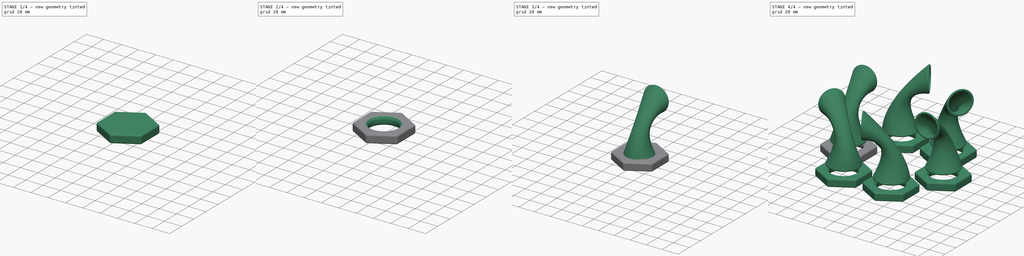
[diagram: build sequence overview — one tinted view per stage of 4, left to right]
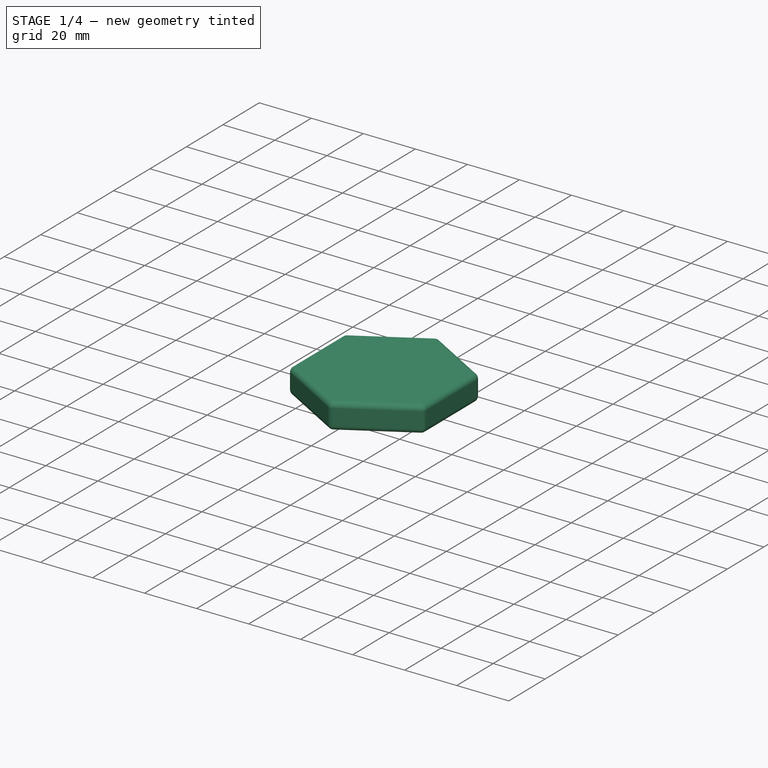
[diagram: stage 1 of 4 — iso view after this stage's code; geometry added in this stage tinted green]
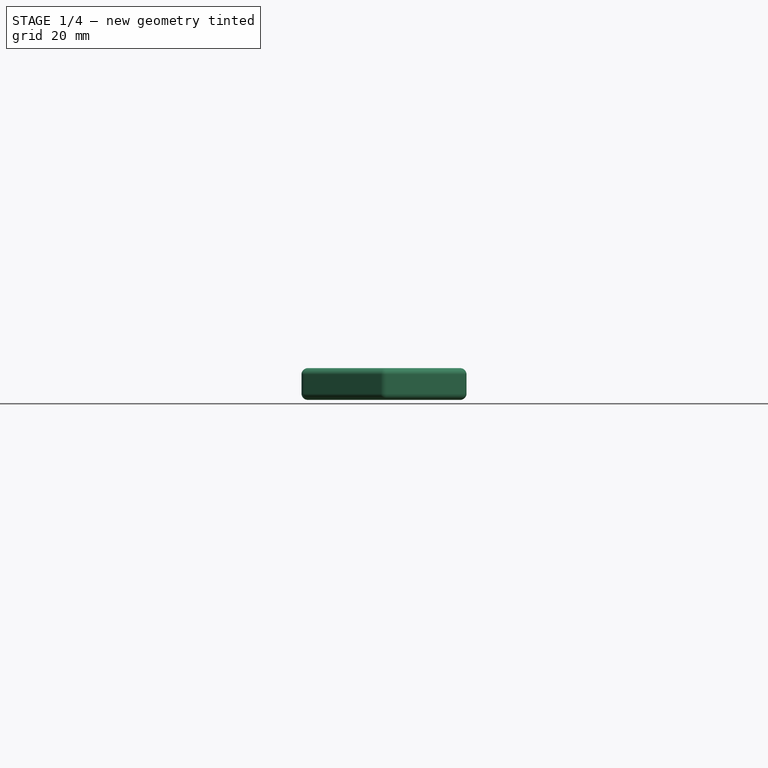
[diagram: stage 1 of 4 — front view after this stage's code; geometry added in this stage tinted green]
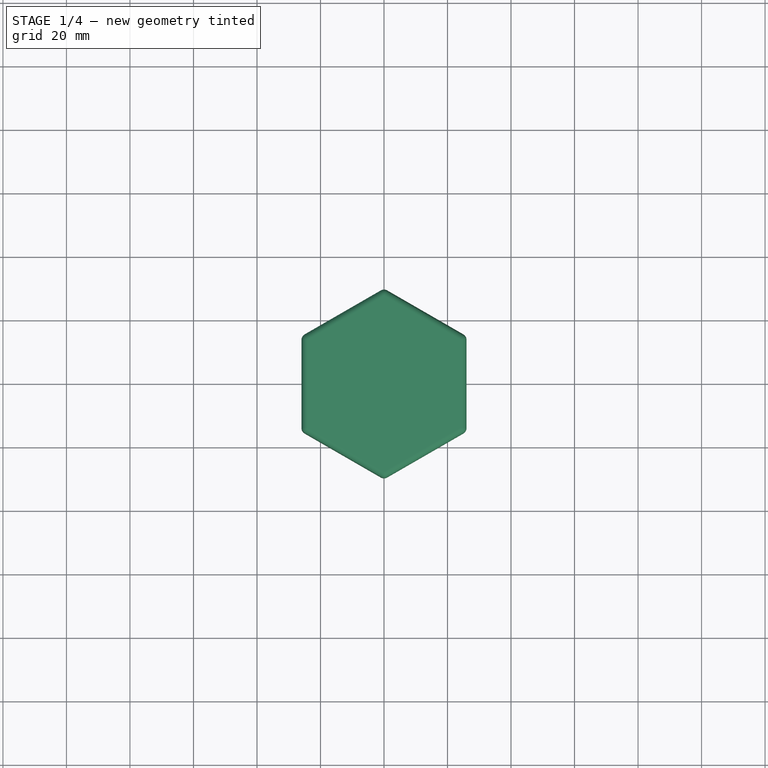
[diagram: stage 1 of 4 — top view after this stage's code; geometry added in this stage tinted green]
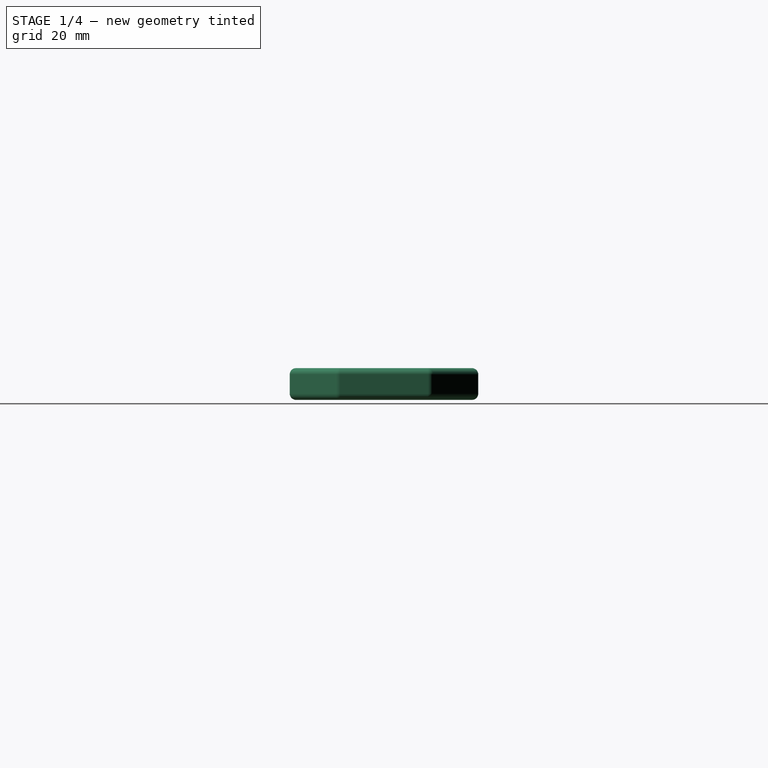
[diagram: stage 1 of 4 — right view after this stage's code; geometry added in this stage tinted green]
FCSTD DOCUMENT  (FreeCAD 0.19R)
Label: freecad_test_DraftLinkedArray_Visibility2
License: Creative Commons Attribution-ShareAlike
LicenseURL: http://creativecommons.org/licenses/by-sa/4.0/
objects: Sketcher::SketchObject×5, PartDesign::Fillet×4, App::Part×4, PartDesign::Body×2, App::Link×2, Part::FeaturePython×2, PartDesign::Pad×1, PartDesign::AdditiveLoft×1, PartDesign::Pocket×1
note: 17 computed .brp shape members not serialized (recipe doc carries the construction recipe); baked Part::Feature solids carry a one-line shape summary decoded from their .brp

FEATURE [Sketcher::SketchObject] Sketch
  MapMode = 5
  Support = -> [XY_Plane003]
  sketch-geometry (7):
    g0: LineSegment StartX=25.9808 StartY=15 StartZ=0 EndX=2.913e-13 EndY=30 EndZ=0
    g1: LineSegment StartX=2.911e-13 StartY=30 StartZ=0 EndX=-25.9808 EndY=15 EndZ=0
    g2: LineSegment StartX=-25.9808 StartY=15 StartZ=0 EndX=-25.9808 EndY=-15 EndZ=0
    g3: LineSegment StartX=-25.9808 StartY=-15 StartZ=0 EndX=3.446e-13 EndY=-30 EndZ=0
    g4: LineSegment StartX=3.446e-13 StartY=-30 StartZ=0 EndX=25.9808 EndY=-15 EndZ=0
    g5: LineSegment StartX=25.9808 StartY=-15 StartZ=0 EndX=25.9808 EndY=15 EndZ=0
    g6: Circle [constr] CenterX=0 CenterY=0 CenterZ=0 NormalX=0 NormalY=0 NormalZ=1 AngleXU=0 Radius=30
  constraints (16):
    c: Coincident(g0,g1)
    c: Coincident(g1,g2)
    c: Coincident(g2,g3)
    c: Coincident(g3,g4)
    c: Coincident(g4,g5)
    c: Coincident(g5,g0)
    c: Equal(g0, g1-g5) x5
    c: PointOnObject(g0,g6)
    c: PointOnObject(g1,g6)
    c: PointOnObject(g2,g6)
    c: PointOnObject(g3,g6)
    c: PointOnObject(g4,g6)
    c: PointOnObject(g5,g6)
    c: Coincident(g6,g-1)
    c: Vertical(g5)
    c: Radius(g6) = 30
FEATURE [PartDesign::Pad] Pad
  Length = 10
  Length2 = 100
  Profile = -> Sketch
  Type = 0
FEATURE [PartDesign::Body] Body001  label="pipe_body"
  Group = -> [Sketch001,Sketch002,Sketch003,AdditiveLoft,Fillet,Fillet001]
  Origin = -> Origin005
  Tip = -> Fillet001
FEATURE [App::Part] Part003  label="pipe_part"
  Group = -> [Body001]
  Origin = -> Origin004
  Placement = pos=(0,0,15) rot=(0,0,1;0rad)
FEATURE [PartDesign::Fillet] Fillet002
  Base = -> Pad [Face8,Face7,Edge14,Edge1,Edge2,Edge5,Edge8,Edge11]
  BaseFeature = -> Pad
  Radius = 2
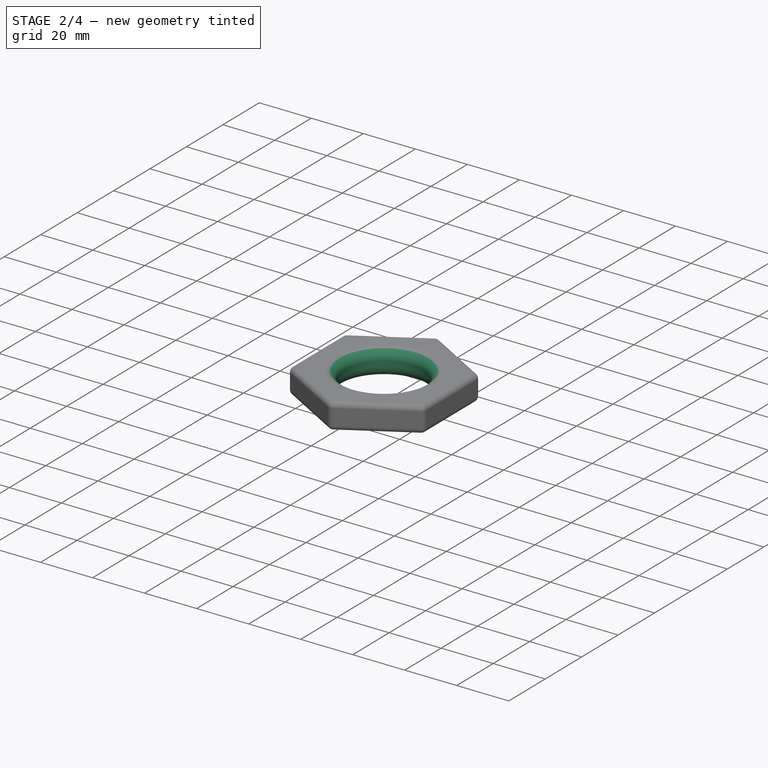
[diagram: stage 2 of 4 — iso view after this stage's code; geometry added in this stage tinted green]
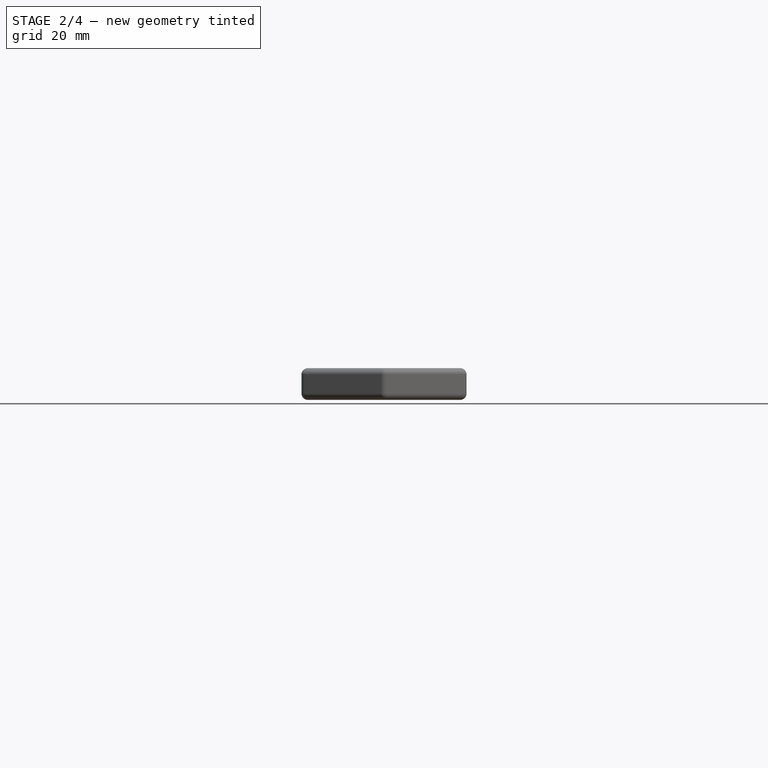
[diagram: stage 2 of 4 — front view after this stage's code; geometry added in this stage tinted green]
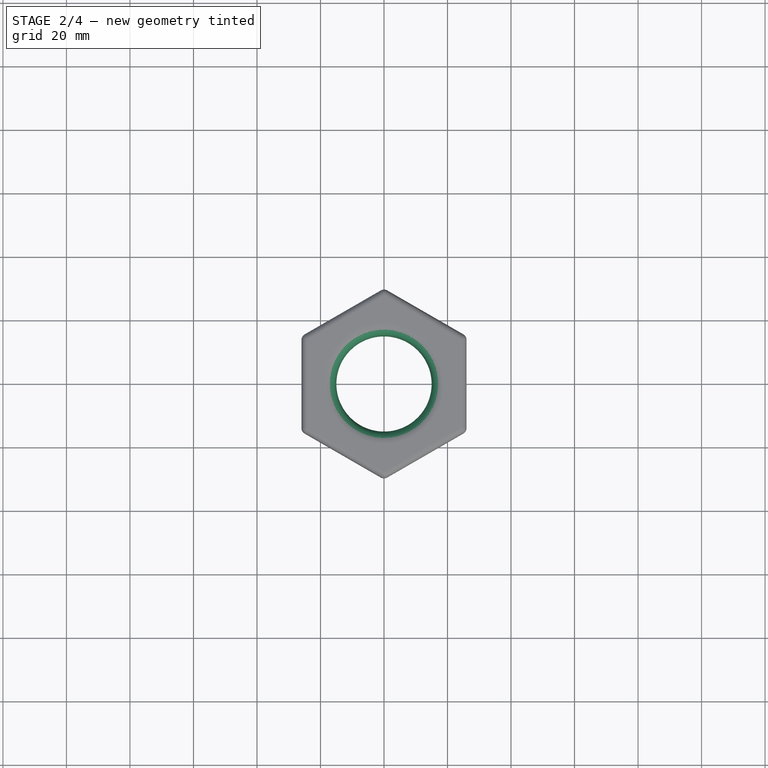
[diagram: stage 2 of 4 — top view after this stage's code; geometry added in this stage tinted green]
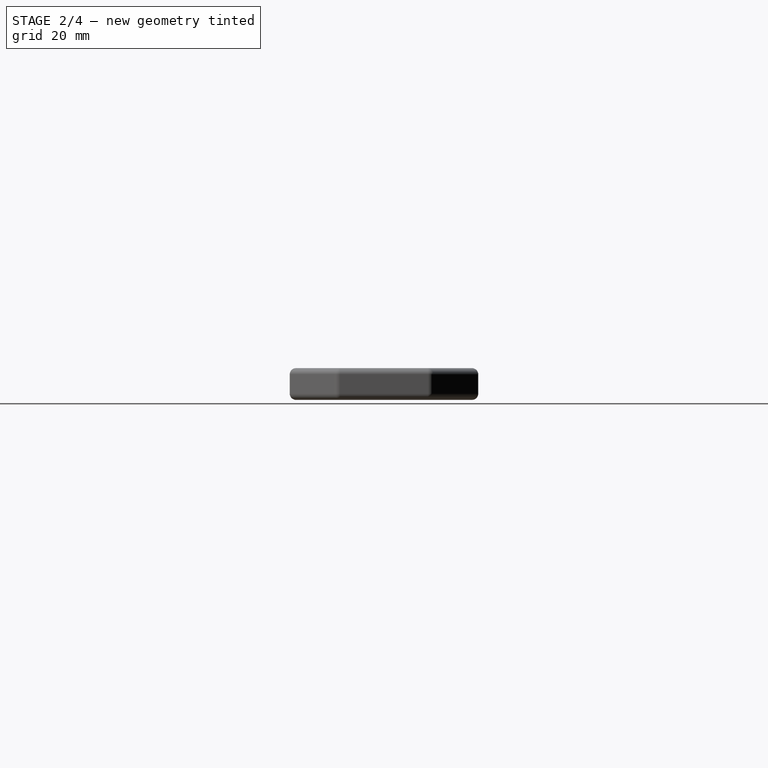
[diagram: stage 2 of 4 — right view after this stage's code; geometry added in this stage tinted green]
FEATURE [Sketcher::SketchObject] Sketch004
  MapMode = 5
  Placement = pos=(0,0,10) rot=(0,0,1;0rad)
  Support = -> [Fillet002]
  sketch-geometry (1):
    g0: Circle CenterX=0 CenterY=0 CenterZ=0 NormalX=0 NormalY=0 NormalZ=1 AngleXU=0 Radius=15
  constraints (2):
    c: Coincident(g0,g-1)
    c: Radius(g0) = 15
FEATURE [PartDesign::Pocket] Pocket
  BaseFeature = -> Fillet002
  Length = 5
  Length2 = 100
  Profile = -> Sketch004
  Type = 1
FEATURE [PartDesign::Fillet] Fillet003
  Base = -> Pocket [Face21]
  BaseFeature = -> Pocket
  Radius = 4
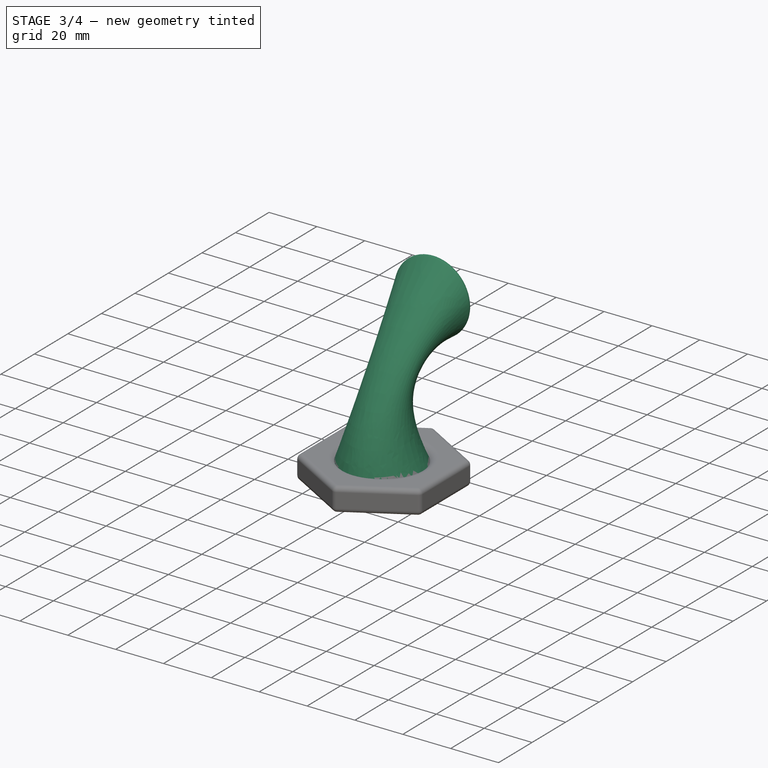
[diagram: stage 3 of 4 — iso view after this stage's code; geometry added in this stage tinted green]
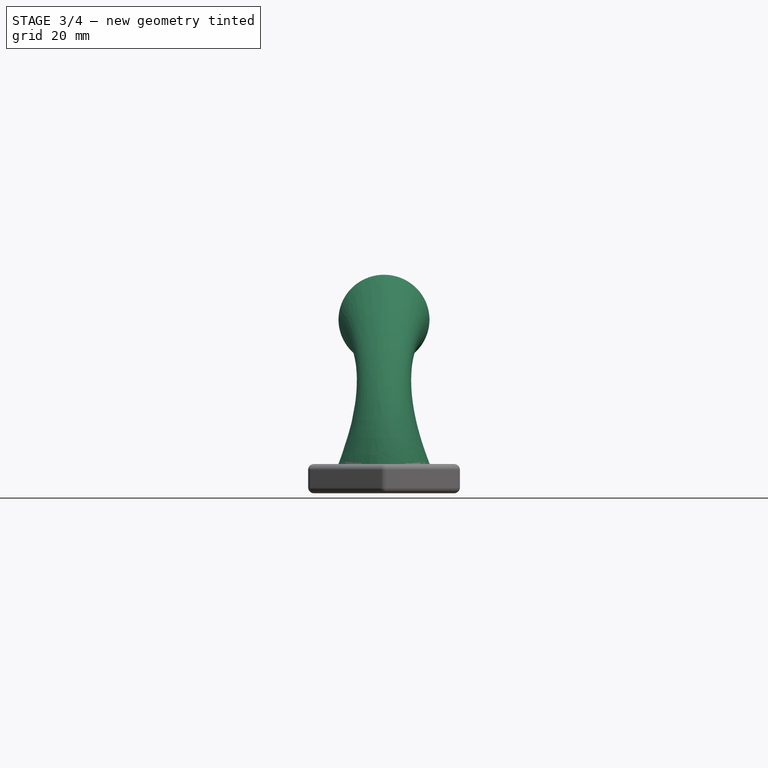
[diagram: stage 3 of 4 — front view after this stage's code; geometry added in this stage tinted green]
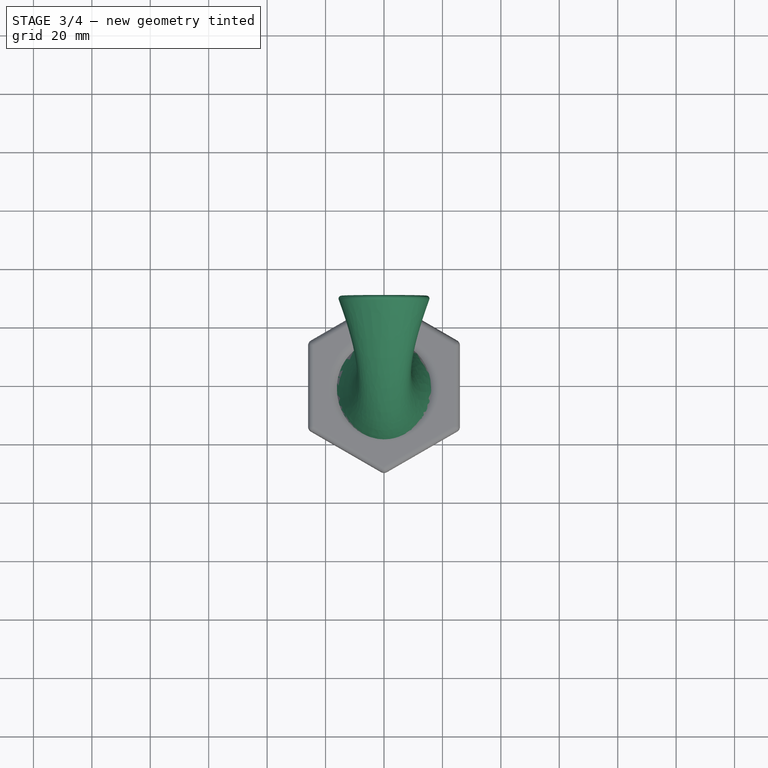
[diagram: stage 3 of 4 — top view after this stage's code; geometry added in this stage tinted green]
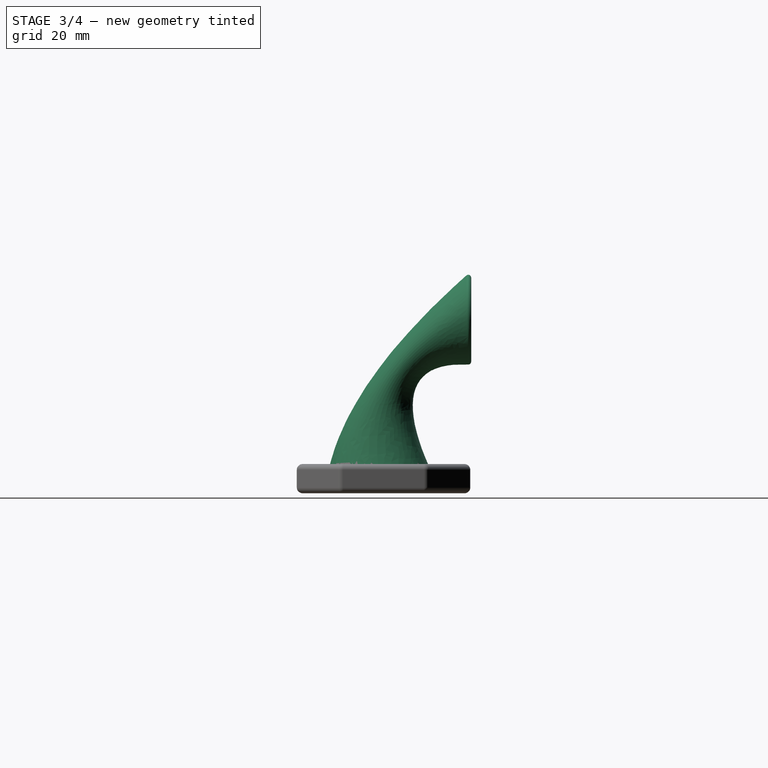
[diagram: stage 3 of 4 — right view after this stage's code; geometry added in this stage tinted green]
FEATURE [Sketcher::SketchObject] Sketch001
  MapMode = 5
  Support = -> [XY_Plane005]
  sketch-geometry (2):
    g0: Circle CenterX=0 CenterY=0 CenterZ=0 NormalX=0 NormalY=0 NormalZ=1 AngleXU=0 Radius=20
    g1: Circle CenterX=0 CenterY=0 CenterZ=0 NormalX=0 NormalY=0 NormalZ=1 AngleXU=0 Radius=15
  constraints (4):
    c: Coincident(g0,g-1)
    c: Radius(g0) = 20
    c: Coincident(g1,g0)
    c: Radius(g1) = 15
FEATURE [Sketcher::SketchObject] Sketch002
  AttachmentOffset = pos=(0,0,30) rot=(0,0,1;0rad)
  MapMode = 5
  Placement = pos=(0,0,30) rot=(0,0,1;0rad)
  Support = -> [XY_Plane005]
  sketch-geometry (2):
    g0: Circle CenterX=0 CenterY=0 CenterZ=0 NormalX=0 NormalY=0 NormalZ=1 AngleXU=0 Radius=10
    g1: Circle CenterX=0 CenterY=0 CenterZ=0 NormalX=0 NormalY=0 NormalZ=1 AngleXU=0 Radius=8
  constraints (4):
    c: Coincident(g0,g-1)
    c: Radius(g0) = 10
    c: Coincident(g1,g0)
    c: Radius(g1) = 8
FEATURE [Sketcher::SketchObject] Sketch003
  AttachmentOffset = pos=(0,30,60) rot=(1,0,0;1.5708rad)
  MapMode = 5
  Placement = pos=(0,30,60) rot=(1,0,0;1.5708rad)
  Support = -> [XY_Plane005]
  sketch-geometry (2):
    g0: Circle CenterX=0 CenterY=0 CenterZ=0 NormalX=0 NormalY=0 NormalZ=1 AngleXU=0 Radius=16
    g1: Circle CenterX=0 CenterY=0 CenterZ=0 NormalX=0 NormalY=0 NormalZ=1 AngleXU=0 Radius=13
  constraints (4):
    c: Coincident(g0,g-1)
    c: Radius(g0) = 16
    c: Coincident(g1,g0)
    c: Radius(g1) = 13
FEATURE [PartDesign::AdditiveLoft] AdditiveLoft
  Closed = false
  Profile = -> Sketch001
  Ruled = false
  Sections = -> [Sketch002,Sketch003]
FEATURE [PartDesign::Fillet] Fillet
  Base = -> AdditiveLoft [Face3]
  BaseFeature = -> AdditiveLoft
  Radius = 1
FEATURE [PartDesign::Fillet] Fillet001
  Base = -> Fillet [Face3]
  BaseFeature = -> Fillet
  Radius = 1.5
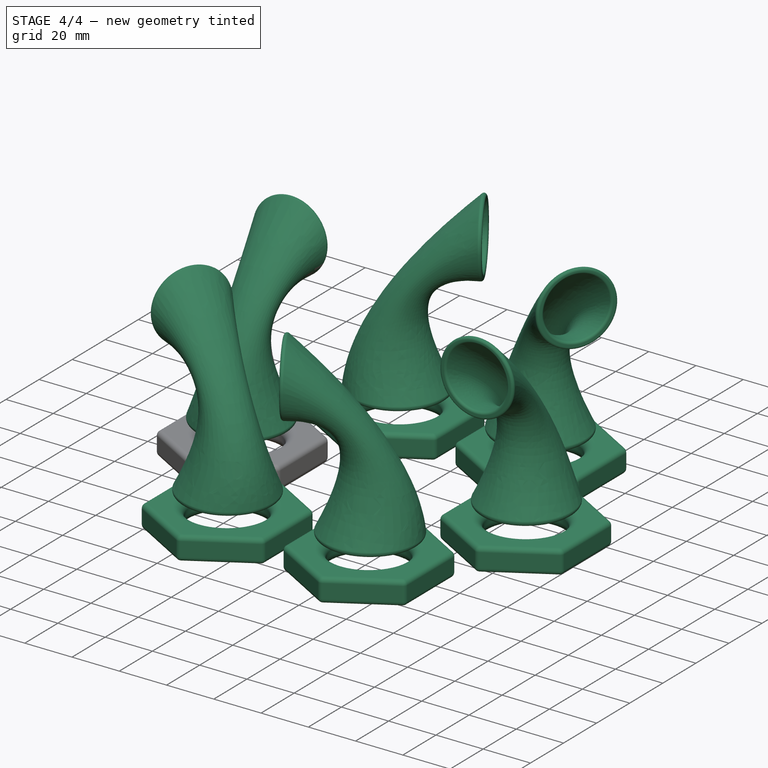
[diagram: stage 4 of 4 — iso view after this stage's code; geometry added in this stage tinted green]
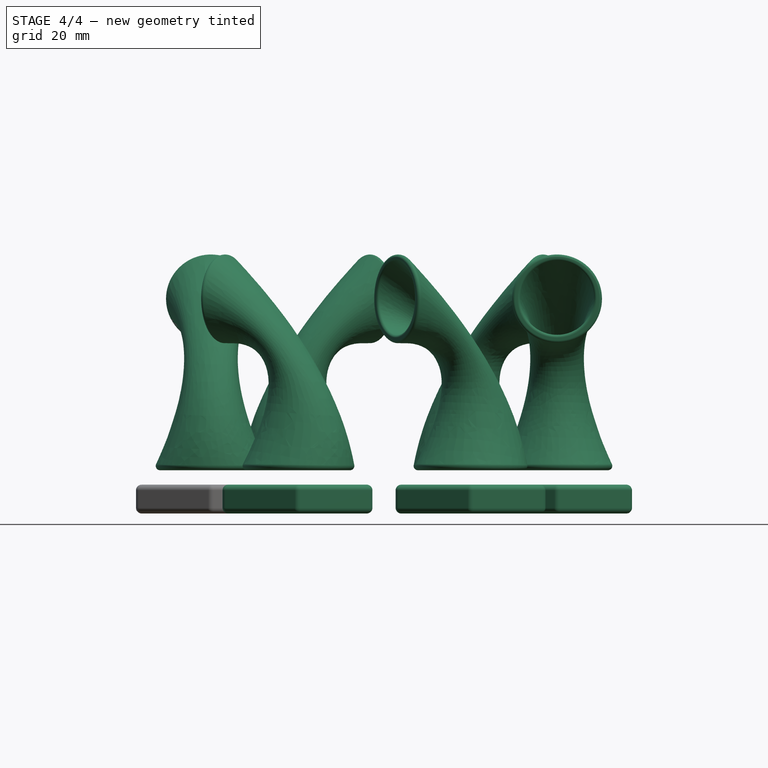
[diagram: stage 4 of 4 — front view after this stage's code; geometry added in this stage tinted green]
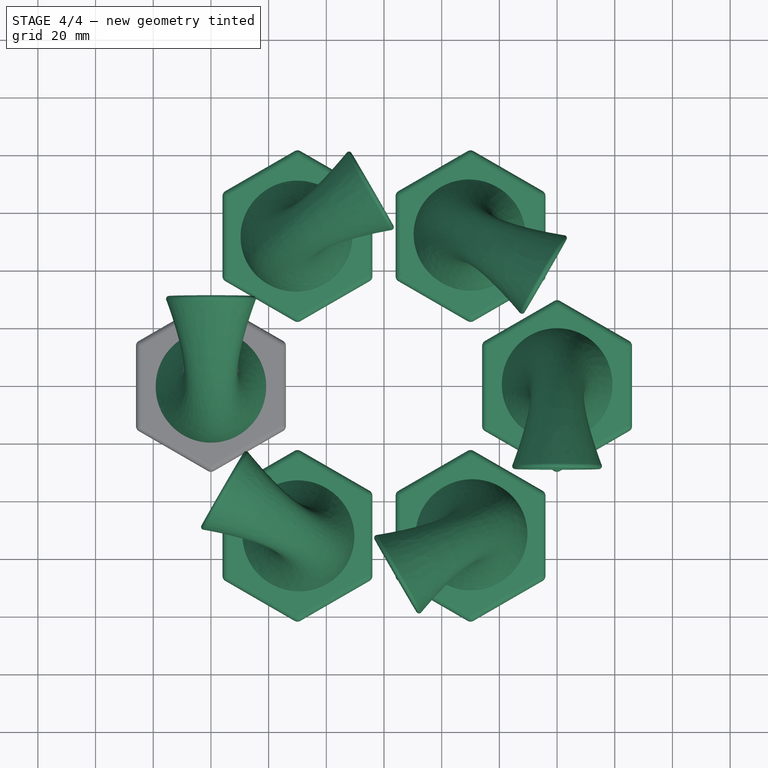
[diagram: stage 4 of 4 — top view after this stage's code; geometry added in this stage tinted green]
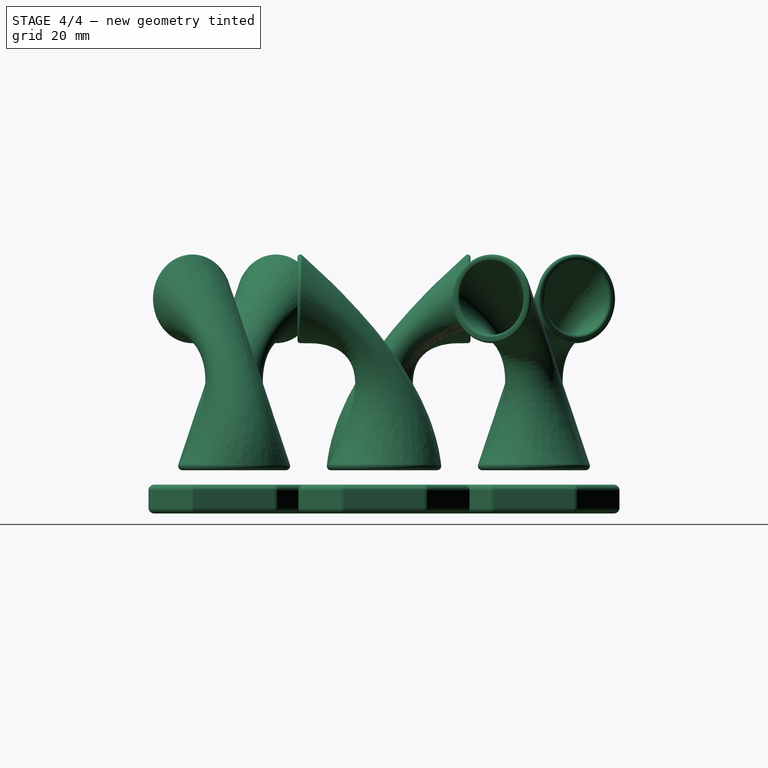
[diagram: stage 4 of 4 — right view after this stage's code; geometry added in this stage tinted green]
FEATURE [PartDesign::Body] Body  label="HexBody"
  Group = -> [Sketch,Pad,Fillet002,Sketch004,Pocket,Fillet003]
  Origin = -> Origin003
  Tip = -> Fillet003
FEATURE [App::Part] Part002  label="hex_part"
  Group = -> [Body]
  Origin = -> Origin002
FEATURE [App::Part] Part001  label="parts"
  Group = -> [Part002,Part003]
  Origin = -> Origin001
FEATURE [App::Link] Link  label="pipe_part003"
  LinkPlacement = pos=(0,0,15) rot=(0,0,1;0rad)
  LinkedObject = -> Part003
  Placement = pos=(0,0,15) rot=(0,0,1;0rad)
FEATURE [Part::FeaturePython] Array001  label="tube_Array"  # Draft array (typed FeaturePython)
  Angle = 360
  ArrayType = 1
  Axis = (0,0,1)
  Base = -> Link
  Center = (60,0,0)
  Count = 6
  ExpandArray = false
  Fuse = false
  IntervalAxis = (0,0,0)
  IntervalX = (1,0,0)
  IntervalY = (0,1,0)
  IntervalZ = (0,0,1)
  NumberCircles = 2
  NumberPolar = 6
  NumberX = 2
  NumberY = 2
  NumberZ = 1
  PlacementList = 6 placements: [(0,0,15),(30,-51.9615,15),(90,-51.9615,15),(120,-7.34788e-15,15),(90,51.9615,15),(30,51.9615,15)]
  RadialDistance = 1
  ScaleList = (6) [(1,1,1),(1,1,1),(1,1,1),(1,1,1),(1,1,1),(1,1,1)]
  Symmetry = 1
  TangentialDistance = 1
FEATURE [App::Link] Link002  label="hex_part001"
  LinkedObject = -> Part002
FEATURE [Part::FeaturePython] Array  label="hex_Array"  # Draft array (typed FeaturePython)
  Angle = 360
  ArrayType = 1
  Axis = (0,0,1)
  Base = -> Link002
  Center = (60,0,0)
  Count = 6
  ExpandArray = false
  Fuse = false
  IntervalAxis = (0,0,0)
  IntervalX = (1,0,0)
  IntervalY = (0,1,0)
  IntervalZ = (0,0,1)
  NumberCircles = 1
  NumberPolar = 6
  NumberX = 1
  NumberY = 1
  NumberZ = 1
  PlacementList = 6 placements: [(0,0,0),(30,-51.9615,0),(90,-51.9615,0),(120,-7.34788e-15,0),(90,51.9615,0),(30,51.9615,0)]
  RadialDistance = 0
  ScaleList = (6) [(1,1,1),(1,1,1),(1,1,1),(1,1,1),(1,1,1),(1,1,1)]
  Symmetry = 1
  TangentialDistance = 0
FEATURE [App::Part] Part  label="assembly"
  Group = -> [Array,Array001]
  Origin = -> Origin
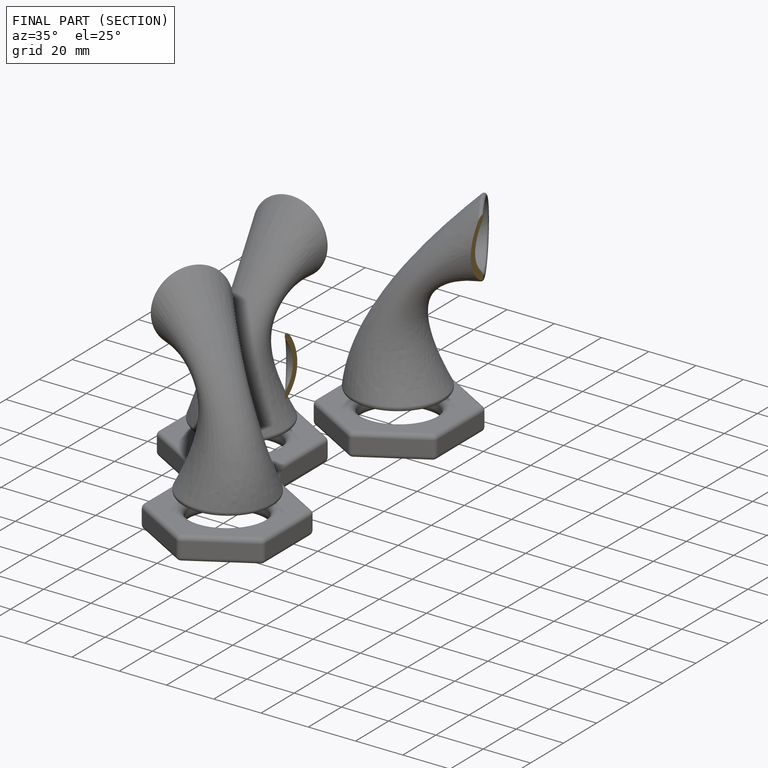
[diagram: finished part — half-section view (interior)]
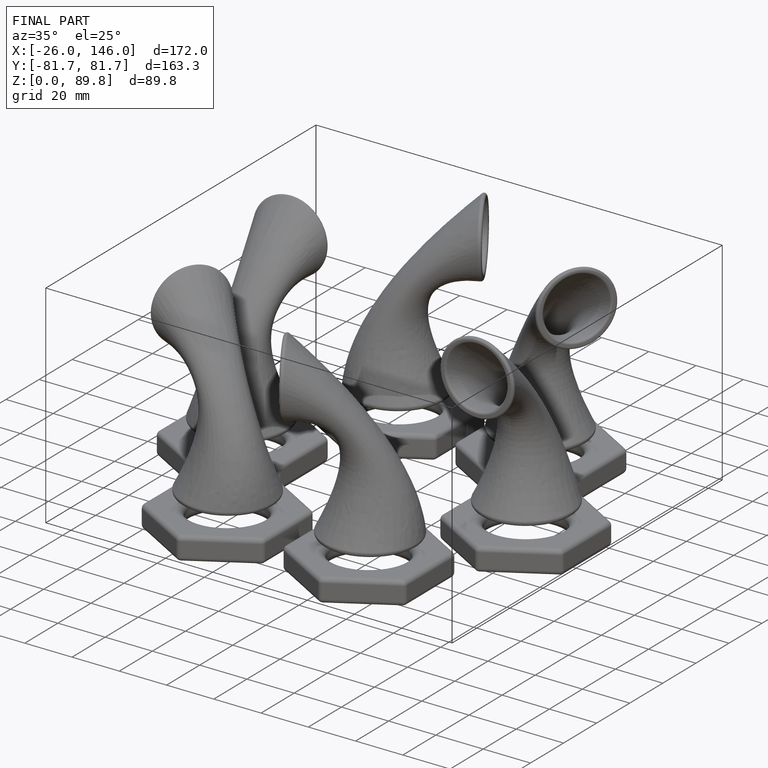
[diagram: finished part — iso view with bounding-box wireframe]
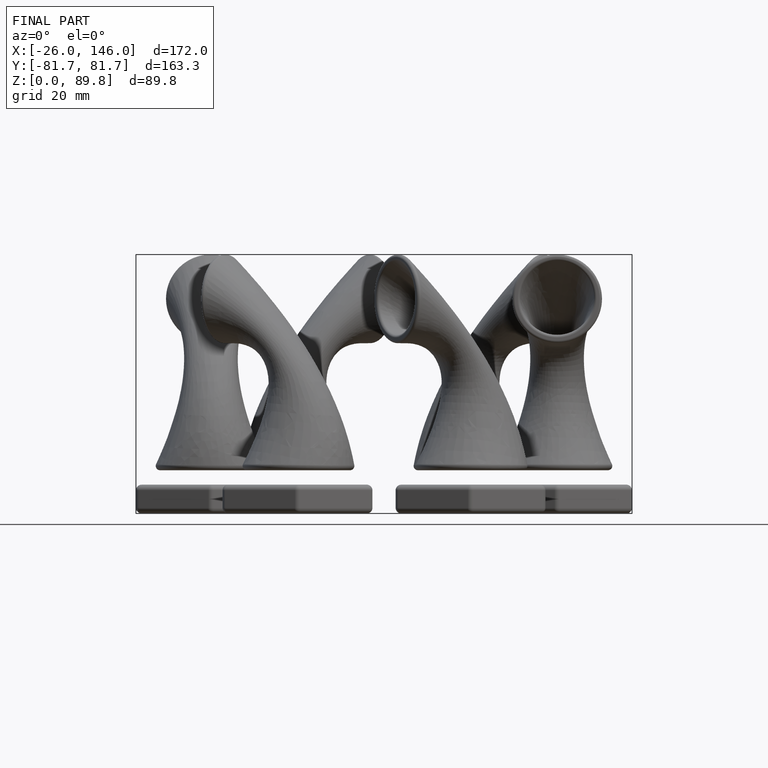
[diagram: finished part — front view with bounding-box wireframe]
